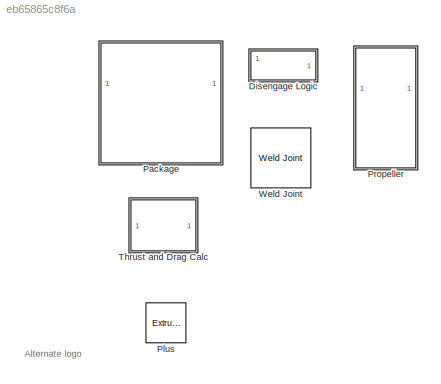
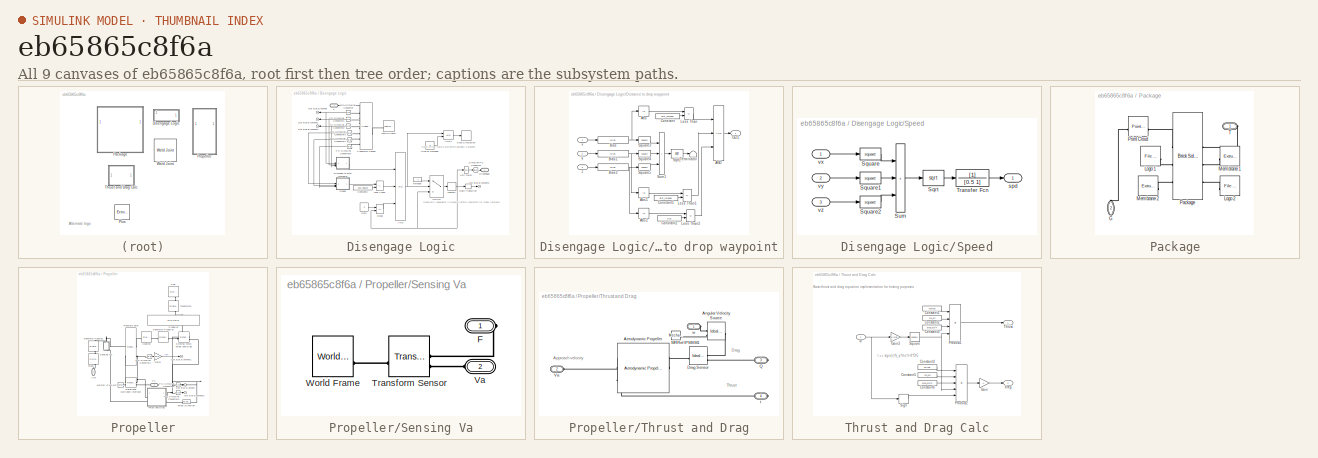
[diagram: thumbnail index - all 9 canvases of the model, root first then tree order]
MODEL slx_eb65865c8f6a
KIND library
CONFIG FixedStep = 0.01
CONFIG SolverName = ode14x
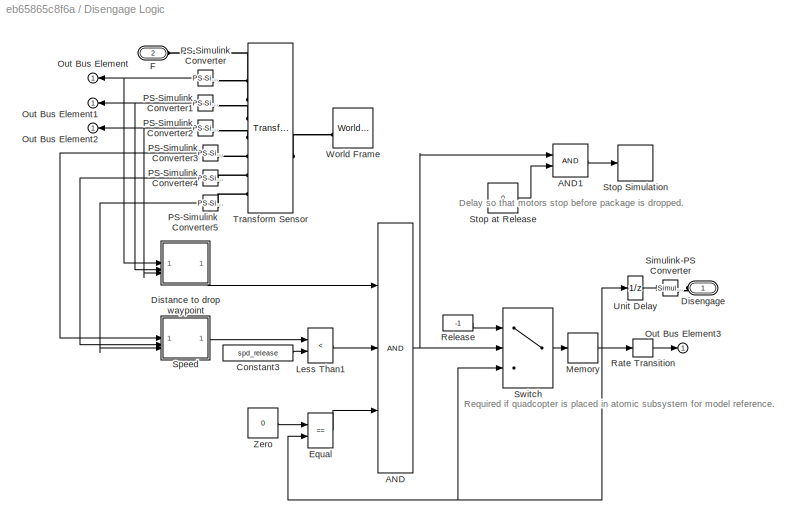
BLOCK [SubSystem] Disengage Logic
BLOCK [Logic] Disengage Logic/AND
  AllPortsSameDT = off
  Inputs = 3
  OutDataTypeStr = boolean
BLOCK [Logic] Disengage Logic/AND1
  AllPortsSameDT = off
  OutDataTypeStr = boolean
BLOCK [Constant] Disengage Logic/Constant3
  Value = spd_release
BLOCK [PMIOPort] Disengage Logic/Disengage
  Side = Left
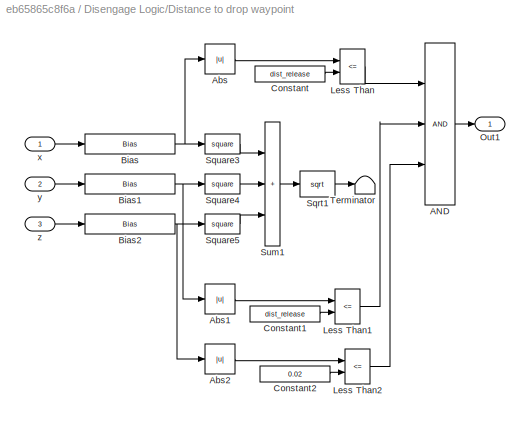
BLOCK [SubSystem] Disengage Logic/Distance to drop waypoint
BLOCK [Logic] Disengage Logic/Distance to drop waypoint/AND
  AllPortsSameDT = off
  Inputs = 3
  OutDataTypeStr = boolean
BLOCK [Abs] Disengage Logic/Distance to drop waypoint/Abs
  SaturateOnIntegerOverflow = off
  ZeroCross = off
BLOCK [Abs] Disengage Logic/Distance to drop waypoint/Abs1
  SaturateOnIntegerOverflow = off
  ZeroCross = off
BLOCK [Abs] Disengage Logic/Distance to drop waypoint/Abs2
  SaturateOnIntegerOverflow = off
  ZeroCross = off
BLOCK [Bias] Disengage Logic/Distance to drop waypoint/Bias
  Bias = -tgt_pos_x
  SaturateOnIntegerOverflow = off
BLOCK [Bias] Disengage Logic/Distance to drop waypoint/Bias1
  Bias = -tgt_pos_y
  SaturateOnIntegerOverflow = off
BLOCK [Bias] Disengage Logic/Distance to drop waypoint/Bias2
  Bias = -tgt_pos_z
  SaturateOnIntegerOverflow = off
BLOCK [Constant] Disengage Logic/Distance to drop waypoint/Constant
  Value = dist_release
BLOCK [Constant] Disengage Logic/Distance to drop waypoint/Constant1
  Value = dist_release
BLOCK [Constant] Disengage Logic/Distance to drop waypoint/Constant2
  Value = 0.02
BLOCK [RelationalOperator] Disengage Logic/Distance to drop waypoint/Less Than
  InputSameDT = off
  Operator = <=
  OutDataTypeStr = boolean
  RndMeth = Simplest
  ZeroCross = off
BLOCK [RelationalOperator] Disengage Logic/Distance to drop waypoint/Less Than1
  InputSameDT = off
  Operator = <=
  OutDataTypeStr = boolean
  RndMeth = Simplest
  ZeroCross = off
BLOCK [RelationalOperator] Disengage Logic/Distance to drop waypoint/Less Than2
  InputSameDT = off
  Operator = <=
  OutDataTypeStr = boolean
  RndMeth = Simplest
  ZeroCross = off
BLOCK [Outport] Disengage Logic/Distance to drop waypoint/Out1
BLOCK [Sqrt] Disengage Logic/Distance to drop waypoint/Sqrt1
BLOCK [Math] Disengage Logic/Distance to drop waypoint/Square3
  Operator = square
BLOCK [Math] Disengage Logic/Distance to drop waypoint/Square4
  Operator = square
BLOCK [Math] Disengage Logic/Distance to drop waypoint/Square5
  Operator = square
BLOCK [Sum] Disengage Logic/Distance to drop waypoint/Sum1
  IconShape = rectangular
  Inputs = +++
BLOCK [Terminator] Disengage Logic/Distance to drop waypoint/Terminator
BLOCK [Inport] Disengage Logic/Distance to drop waypoint/x
BLOCK [Inport] Disengage Logic/Distance to drop waypoint/y
  Port = 2
BLOCK [Inport] Disengage Logic/Distance to drop waypoint/z
  Port = 3
BLOCK [RelationalOperator] Disengage Logic/Equal
  InputSameDT = off
  Operator = ==
  OutDataTypeStr = boolean
  RndMeth = Simplest
BLOCK [PMIOPort] Disengage Logic/F
  Port = 2
  Side = Left
BLOCK [RelationalOperator] Disengage Logic/Less Than1
  InputSameDT = off
  Operator = <
  OutDataTypeStr = boolean
  RndMeth = Simplest
  ZeroCross = off
BLOCK [Memory] Disengage Logic/Memory
BLOCK [Outport] Disengage Logic/Out Bus Element
BLOCK [Outport] Disengage Logic/Out Bus Element1
BLOCK [Outport] Disengage Logic/Out Bus Element2
BLOCK [Outport] Disengage Logic/Out Bus Element3
BLOCK [Reference] Disengage Logic/PS-Simulink Converter  REF=nesl_utility/PS-Simulink
Converter
  SourceBlock = nesl_utility/PS-Simulink\nConverter
  SourceType = PS-Simulink\nConverter
BLOCK [Reference] Disengage Logic/PS-Simulink Converter1  REF=nesl_utility/PS-Simulink
Converter
  SourceBlock = nesl_utility/PS-Simulink\nConverter
  SourceType = PS-Simulink\nConverter
BLOCK [Reference] Disengage Logic/PS-Simulink Converter2  REF=nesl_utility/PS-Simulink
Converter
  SourceBlock = nesl_utility/PS-Simulink\nConverter
  SourceType = PS-Simulink\nConverter
BLOCK [Reference] Disengage Logic/PS-Simulink Converter3  REF=nesl_utility/PS-Simulink
Converter
  SourceBlock = nesl_utility/PS-Simulink\nConverter
  SourceType = PS-Simulink\nConverter
BLOCK [Reference] Disengage Logic/PS-Simulink Converter4  REF=nesl_utility/PS-Simulink
Converter
  SourceBlock = nesl_utility/PS-Simulink\nConverter
  SourceType = PS-Simulink\nConverter
BLOCK [Reference] Disengage Logic/PS-Simulink Converter5  REF=nesl_utility/PS-Simulink
Converter
  SourceBlock = nesl_utility/PS-Simulink\nConverter
  SourceType = PS-Simulink\nConverter
BLOCK [RateTransition] Disengage Logic/Rate Transition
BLOCK [Constant] Disengage Logic/Release
  NameLocation = top
  OutDataTypeStr = Inherit: Inherit via back propagation
  Value = -1
BLOCK [Reference] Disengage Logic/Simulink-PS Converter  REF=nesl_utility/Simulink-PS
Converter
  SourceBlock = nesl_utility/Simulink-PS\nConverter
  SourceType = Simulink-PS\nConverter
BLOCK [SubSystem] Disengage Logic/Speed
BLOCK [Sqrt] Disengage Logic/Speed/Sqrt
BLOCK [Math] Disengage Logic/Speed/Square
  Operator = square
BLOCK [Math] Disengage Logic/Speed/Square1
  Operator = square
BLOCK [Math] Disengage Logic/Speed/Square2
  Operator = square
BLOCK [Sum] Disengage Logic/Speed/Sum
  IconShape = rectangular
  Inputs = +++
BLOCK [TransferFcn] Disengage Logic/Speed/Transfer Fcn
  Denominator = [0.5 1]
BLOCK [Outport] Disengage Logic/Speed/spd
BLOCK [Inport] Disengage Logic/Speed/vx
BLOCK [Inport] Disengage Logic/Speed/vy
  Port = 2
BLOCK [Inport] Disengage Logic/Speed/vz
  Port = 3
BLOCK [Stop] Disengage Logic/Stop Simulation
BLOCK [Constant] Disengage Logic/Stop at Release
  Value = 0
BLOCK [Switch] Disengage Logic/Switch
  Criteria = u2 > Threshold
  InputSameDT = off
  SaturateOnIntegerOverflow = off
BLOCK [Reference] Disengage Logic/Transform Sensor  REF=sm_lib/Frames and
Transforms/Transform
Sensor
  SourceBlock = sm_lib/Frames and\nTransforms/Transform\nSensor
  SourceType = Transform\nSensor
BLOCK [UnitDelay] Disengage Logic/Unit Delay
  NameLocation = top
  SampleTime = delay_release
BLOCK [Reference] Disengage Logic/World Frame  REF=sm_lib/Frames and
Transforms/World Frame
  SourceBlock = sm_lib/Frames and\nTransforms/World Frame
  SourceType = World Frame
BLOCK [Constant] Disengage Logic/Zero
  OutDataTypeStr = Inherit: Inherit via back propagation
  Value = 0
BLOCK [SubSystem] Package
BLOCK [PMIOPort] Package/G
  NameLocation = left
  Port = 2
  Side = Left
BLOCK [Reference] Package/Logo 1  REF=sm_lib/Body Elements/File Solid
  SourceBlock = sm_lib/Body Elements/File Solid
  SourceType = File Solid
BLOCK [Reference] Package/Logo 2  REF=sm_lib/Body Elements/File Solid
  SourceBlock = sm_lib/Body Elements/File Solid
  SourceType = File Solid
BLOCK [Reference] Package/Membrane 1  REF=sm_lib/Body Elements/Extruded Solid
  SourceBlock = sm_lib/Body Elements/Extruded Solid
  SourceType = Extruded Solid
BLOCK [Reference] Package/Membrane 2   REF=sm_lib/Body Elements/Extruded Solid
  SourceBlock = sm_lib/Body Elements/Extruded Solid
  SourceType = Extruded Solid
BLOCK [Reference] Package/Package  REF=sm_lib/Body Elements/Brick Solid
  SourceBlock = sm_lib/Body Elements/Brick Solid
  SourceType = Brick Solid
BLOCK [Reference] Package/Point Cloud  REF=sm_lib/Curves and Surfaces/Point Cloud
  SourceBlock = sm_lib/Curves and Surfaces/Point Cloud
  SourceType = Point Cloud
BLOCK [PMIOPort] Package/T
  Side = Right
BLOCK [Reference] Plus  REF=sm_lib/Body Elements/Extruded Solid
  SourceBlock = sm_lib/Body Elements/Extruded Solid
  SourceType = Extruded Solid
BLOCK [SubSystem] Propeller
BLOCK [PMIOPort] Propeller/Arm
  NameLocation = left
  Side = Left
BLOCK [Reference] Propeller/Base  REF=sm_lib/Body Elements/Cylindrical Solid
  NameLocation = left
  SourceBlock = sm_lib/Body Elements/Cylindrical Solid
  SourceType = Cylindrical Solid
BLOCK [Reference] Propeller/Cap  REF=sm_lib/Body Elements/File Solid
  NameLocation = right
  SourceBlock = sm_lib/Body Elements/File Solid
  SourceType = File Solid
BLOCK [Reference] Propeller/External Force Thrust and Drag  REF=sm_lib/Forces and
Torques/External Force
and Torque
  SourceBlock = sm_lib/Forces and\nTorques/External Force\nand Torque
  SourceType = External Force\nand Torque
BLOCK [Gain] Propeller/Gain1
  Gain = 30/pi
BLOCK [Reference] Propeller/Housing  REF=sm_lib/Body Elements/File Solid
  SourceBlock = sm_lib/Body Elements/File Solid
  SourceType = File Solid
BLOCK [Reference] Propeller/MRRef IPMSM2  REF=fl_lib/Mechanical/Rotational Elements/Mechanical
Rotational Reference
  SourceBlock = fl_lib/Mechanical/Rotational Elements/Mechanical\nRotational Reference
  SourceType = Mechanical\nRotational Reference
BLOCK [Outport] Propeller/Out Bus Element
BLOCK [Outport] Propeller/Out Bus Element1
BLOCK [Outport] Propeller/Out Bus Element2
BLOCK [PMIOPort] Propeller/P1
  NameLocation = top
  Port = 2
  Side = Right
BLOCK [Reference] Propeller/PS-Simulink Converter1  REF=nesl_utility/PS-Simulink
Converter
  SourceBlock = nesl_utility/PS-Simulink\nConverter
  SourceType = PS-Simulink\nConverter
BLOCK [Reference] Propeller/PS-Simulink Converter2  REF=nesl_utility/PS-Simulink
Converter
  SourceBlock = nesl_utility/PS-Simulink\nConverter
  SourceType = PS-Simulink\nConverter
BLOCK [Reference] Propeller/PS-Simulink Converter3  REF=nesl_utility/PS-Simulink
Converter
  SourceBlock = nesl_utility/PS-Simulink\nConverter
  SourceType = PS-Simulink\nConverter
BLOCK [Reference] Propeller/Propeller  REF=sm_lib/Body Elements/File Solid
  NameLocation = left
  SourceBlock = sm_lib/Body Elements/File Solid
  SourceType = File Solid
BLOCK [Reference] Propeller/Revolute Joint  REF=sm_lib/Joints/Revolute Joint
  SourceBlock = sm_lib/Joints/Revolute Joint
  SourceType = Revolute Joint
BLOCK [Reference] Propeller/Rotational Multibody Interface  REF=fl_lib/Mechanical/Multibody Interfaces/Rotational Multibody
Interface
  SourceBlock = fl_lib/Mechanical/Multibody Interfaces/Rotational Multibody\nInterface
  SourceType = Rotational Multibody\nInterface
BLOCK [SubSystem] Propeller/Sensing Va
  NameLocation = right
BLOCK [PMIOPort] Propeller/Sensing Va/F
  Side = Right
BLOCK [Reference] Propeller/Sensing Va/Transform Sensor  REF=sm_lib/Frames and
Transforms/Transform
Sensor
  SourceBlock = sm_lib/Frames and\nTransforms/Transform\nSensor
  SourceType = Transform\nSensor
BLOCK [PMIOPort] Propeller/Sensing Va/Va
  Port = 2
  Side = Left
BLOCK [Reference] Propeller/Sensing Va/World Frame  REF=sm_lib/Frames and
Transforms/World Frame
  SourceBlock = sm_lib/Frames and\nTransforms/World Frame
  SourceType = World Frame
BLOCK [Reference] Propeller/Thrust Direction  REF=fl_lib/Physical Signals/Functions/PS Gain
  SourceBlock = fl_lib/Physical Signals/Functions/PS Gain
  SourceType = PS Gain
BLOCK [SubSystem] Propeller/Thrust and Drag
BLOCK [Reference] Propeller/Thrust and Drag/Aerodynamic Propeller  REF=sdl_lib/Engines & Motors/Aerodynamic
Propeller
  SourceBlock = sdl_lib/Engines & Motors/Aerodynamic\nPropeller
  SourceType = Aerodynamic\nPropeller
BLOCK [Reference] Propeller/Thrust and Drag/Angular Velocity Source  REF=fl_lib/Mechanical/Mechanical Sources/Ideal Angular
Velocity Source
  NameLocation = top
  SourceBlock = fl_lib/Mechanical/Mechanical Sources/Ideal Angular\nVelocity Source
  SourceType = Ideal Angular\nVelocity Source
BLOCK [Reference] Propeller/Thrust and Drag/Drag Sensor  REF=fl_lib/Mechanical/Mechanical Sensors/Ideal Torque Sensor
  SourceBlock = fl_lib/Mechanical/Mechanical Sensors/Ideal Torque Sensor
  SourceType = Ideal Torque Sensor
BLOCK [Reference] Propeller/Thrust and Drag/MRRef IPMSM1  REF=fl_lib/Mechanical/Rotational Elements/Mechanical
Rotational Reference
  SourceBlock = fl_lib/Mechanical/Rotational Elements/Mechanical\nRotational Reference
  SourceType = Mechanical\nRotational Reference
BLOCK [PMIOPort] Propeller/Thrust and Drag/Q
  Port = 3
  Side = Right
BLOCK [PMIOPort] Propeller/Thrust and Drag/Va
  Port = 2
  Side = Left
BLOCK [PMIOPort] Propeller/Thrust and Drag/t
  Port = 4
  Side = Right
BLOCK [PMIOPort] Propeller/Thrust and Drag/w
  NameLocation = top
  Side = Left
BLOCK [Reference] Propeller/Transform Housing  REF=sm_lib/Frames and
Transforms/Rigid
Transform
  NameLocation = left
  SourceBlock = sm_lib/Frames and\nTransforms/Rigid\nTransform
  SourceType = Rigid\nTransform
BLOCK [Reference] Propeller/Transform Propeller  REF=sm_lib/Frames and
Transforms/Rigid
Transform
  SourceBlock = sm_lib/Frames and\nTransforms/Rigid\nTransform
  SourceType = Rigid\nTransform
BLOCK [Reference] Propeller/Transform5  REF=sm_lib/Frames and
Transforms/Rigid
Transform
  NameLocation = right
  SourceBlock = sm_lib/Frames and\nTransforms/Rigid\nTransform
  SourceType = Rigid\nTransform
BLOCK [SubSystem] Thrust and Drag Calc
BLOCK [Constant] Thrust and Drag Calc/Constant1
  Value = kThrust
BLOCK [Constant] Thrust and Drag Calc/Constant2
  Value = rho_air
BLOCK [Constant] Thrust and Drag Calc/Constant3
  Value = prop_dia^4
BLOCK [Constant] Thrust and Drag Calc/Constant4
  Value = kDrag
BLOCK [Constant] Thrust and Drag Calc/Constant5
  Value = rho_air
BLOCK [Constant] Thrust and Drag Calc/Constant6
  Value = prop_dia^5
BLOCK [Gain] Thrust and Drag Calc/Gain
  Gain = -1
BLOCK [Gain] Thrust and Drag Calc/Gain3
  Gain = 1/(2*pi)
BLOCK [Product] Thrust and Drag Calc/Product1
  Inputs = 4
BLOCK [Product] Thrust and Drag Calc/Product2
  Inputs = 5
BLOCK [Signum] Thrust and Drag Calc/Sign
  ZeroCross = off
BLOCK [Math] Thrust and Drag Calc/Square
  Operator = square
BLOCK [Outport] Thrust and Drag Calc/Thrust
BLOCK [Outport] Thrust and Drag Calc/drag
  Port = 2
BLOCK [Inport] Thrust and Drag Calc/w
BLOCK [Reference] Weld Joint  REF=sm_lib/Joints/Weld Joint
  SourceBlock = sm_lib/Joints/Weld Joint
  SourceType = Weld Joint
ANNOTATION (root): Alternate logo
ANNOTATION Disengage Logic: Delay so that motors stop before package is dropped.
ANNOTATION Disengage Logic: Required if quadcopter is placed in atomic subsystem for model reference.
ANNOTATION Propeller/Thrust and Drag: Approach velocity
ANNOTATION Propeller/Thrust and Drag: Drag
ANNOTATION Propeller/Thrust and Drag: Thrust
ANNOTATION Thrust and Drag Calc: Basic thrust and drag equation implementation for testing purposes.
ANNOTATION Thrust and Drag Calc: t == sign(n)*k_q*rho*n^2*D^5
LINE Thrust and Drag Calc/Constant1:1 -> Thrust and Drag Calc/Product1:1
LINE Thrust and Drag Calc/Constant2:1 -> Thrust and Drag Calc/Product1:2
LINE Thrust and Drag Calc/Constant3:1 -> Thrust and Drag Calc/Product1:3
LINE Thrust and Drag Calc/Constant4:1 -> Thrust and Drag Calc/Product2:1
LINE Thrust and Drag Calc/Constant5:1 -> Thrust and Drag Calc/Product2:2
LINE Thrust and Drag Calc/Constant6:1 -> Thrust and Drag Calc/Product2:3
LINE Thrust and Drag Calc/Gain3:1 -> Thrust and Drag Calc/Square:1
LINE Thrust and Drag Calc/Gain:1 -> Thrust and Drag Calc/drag:1
LINE Thrust and Drag Calc/Product1:1 -> Thrust and Drag Calc/Thrust:1
LINE Thrust and Drag Calc/Product2:1 -> Thrust and Drag Calc/Gain:1
LINE Thrust and Drag Calc/Sign:1 -> Thrust and Drag Calc/Product2:5
NET Thrust and Drag Calc/Square:1 -> Thrust and Drag Calc/Product1:4, Thrust and Drag Calc/Product2:4
NET Thrust and Drag Calc/w:1 -> Thrust and Drag Calc/Gain3:1, Thrust and Drag Calc/Sign:1
PLINE Package/G:RConn1 -- Package/Point Cloud:RConn1
PLINE Package/Logo 1:RConn1 -- Package/Package:RConn2
PLINE Package/Logo 2:RConn1 -- Package/Package:LConn3
PLINE Package/Membrane 1:RConn1 -- Package/Package:LConn2
PLINE Package/Membrane 2 :RConn1 -- Package/Package:RConn3
PLINE Package/Package:LConn1 -- Package/T:RConn1
PLINE Package/Package:RConn1 -- Package/Point Cloud:LConn1
note: NET lines group one-source signal fan-out (src -> all destinations, sorted); 1:1 wires keep LINE
